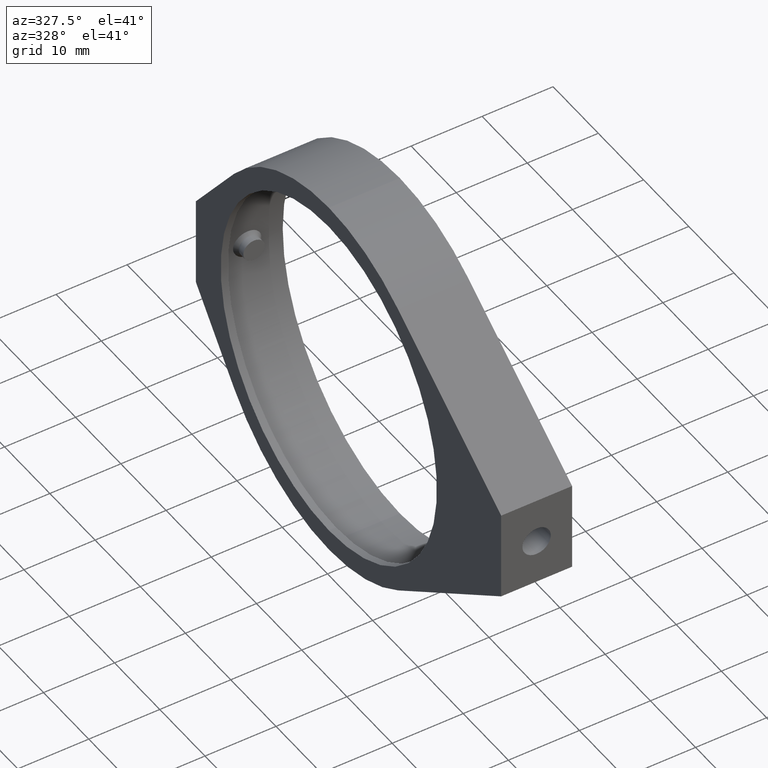
[diagram: clean part render]
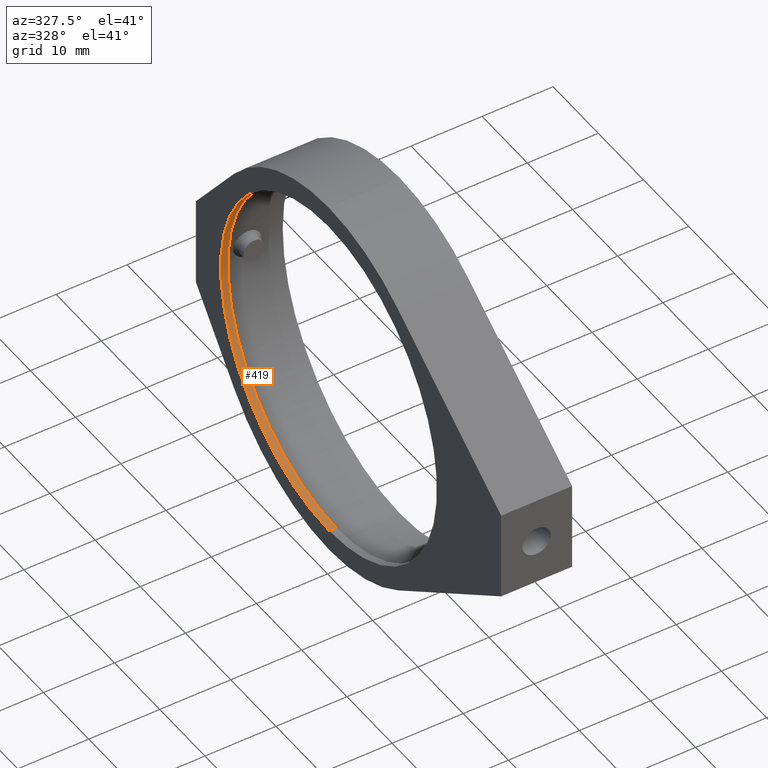
[diagram: same view with one face highlighted and labeled with its STEP entity id]
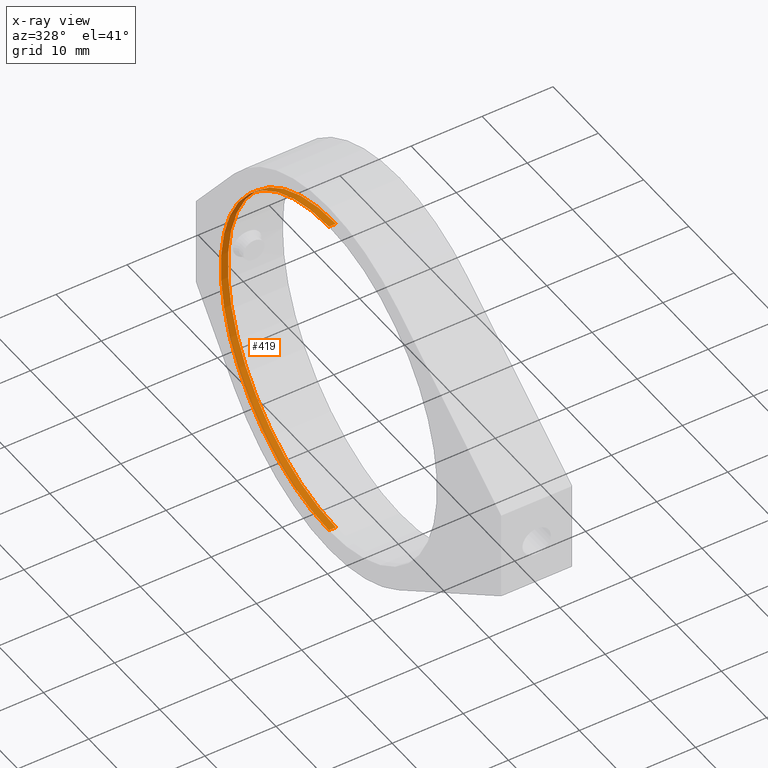
[diagram: x-ray of the same camera — body ghosted, the highlighted face saturated]
A machine part, auxiliary view. The second image highlights one B-rep face of the part: STEP entity #419.
The next image is the same camera in x-ray: the body ghosted, the highlighted face saturated — about 0% of this face is hidden behind the body in this view.
In plain terms, the highlighted cylindrical surface (partial cylindrical patch) has radius 23.9 mm, axis along (1, -0, -0).
Its self-contained STEP definition (entity closure, byte-faithful):
#39 = CARTESIAN_POINT ( 'NONE',  ( -18.30337078651686156, 2.372471910112824212, 43.59999999999998721 ) ) ;
#52 = EDGE_CURVE ( 'NONE', #1049, #349, #861, .T. ) ;
#65 = LINE ( 'NONE', #760, #1290 ) ;
#75 = CIRCLE ( 'NONE', #936, 23.90000000000000568 ) ;
#80 = EDGE_CURVE ( 'NONE', #121, #349, #432, .T. ) ;
#121 = VERTEX_POINT ( 'NONE', #940 ) ;
#145 = CARTESIAN_POINT ( 'NONE',  ( -17.30337078651686156, 2.372471910112824212, 67.49999999999998579 ) ) ;
#182 = DIRECTION ( 'NONE',  ( 1.000000000000000000, -0.0000000000000000000, -0.0000000000000000000 ) ) ;
#185 = CARTESIAN_POINT ( 'NONE',  ( -18.30337078651686156, 2.372471910112827320, 91.39999999999999147 ) ) ;
#308 = CYLINDRICAL_SURFACE ( 'NONE', #1058, 23.90000000000000568 ) ;
#314 = DIRECTION ( 'NONE',  ( 1.000000000000000000, -0.0000000000000000000, -0.0000000000000000000 ) ) ;
#321 = VERTEX_POINT ( 'NONE', #39 ) ;
#349 = VERTEX_POINT ( 'NONE', #660 ) ;
#399 = CARTESIAN_POINT ( 'NONE',  ( -18.30337078651686156, 2.372471910112824212, 67.49999999999998579 ) ) ;
#419 = ADVANCED_FACE ( 'NONE', ( #653 ), #308, .F. ) ;
#432 = LINE ( 'NONE', #185, #758 ) ;
#498 = CARTESIAN_POINT ( 'NONE',  ( -17.30337078651686156, 2.372471910112824212, 43.59999999999998721 ) ) ;
#565 = ORIENTED_EDGE ( 'NONE', *, *, #52, .T. ) ;
#583 = ORIENTED_EDGE ( 'NONE', *, *, #816, .F. ) ;
#613 = DIRECTION ( 'NONE',  ( 1.000000000000000000, 0.0000000000000000000, 0.0000000000000000000 ) ) ;
#653 = FACE_OUTER_BOUND ( 'NONE', #959, .T. ) ;
#658 = DIRECTION ( 'NONE',  ( 1.000000000000000000, 0.0000000000000000000, 0.0000000000000000000 ) ) ;
#660 = CARTESIAN_POINT ( 'NONE',  ( -17.30337078651686156, 2.372471910112827320, 91.39999999999999147 ) ) ;
#725 = DIRECTION ( 'NONE',  ( 0.0000000000000000000, 0.0000000000000000000, -1.000000000000000000 ) ) ;
#758 = VECTOR ( 'NONE', #314, 1000.000000000000000 ) ;
#760 = CARTESIAN_POINT ( 'NONE',  ( -18.30337078651686156, 2.372471910112824212, 43.59999999999998721 ) ) ;
#770 = CARTESIAN_POINT ( 'NONE',  ( -18.30337078651686156, 2.372471910112824212, 67.49999999999998579 ) ) ;
#816 = EDGE_CURVE ( 'NONE', #321, #121, #75, .T. ) ;
#861 = CIRCLE ( 'NONE', #1483, 23.90000000000000568 ) ;
#936 = AXIS2_PLACEMENT_3D ( 'NONE', #770, #658, #725 ) ;
#940 = CARTESIAN_POINT ( 'NONE',  ( -18.30337078651686156, 2.372471910112827320, 91.39999999999999147 ) ) ;
#959 = EDGE_LOOP ( 'NONE', ( #1051, #583, #1271, #565 ) ) ;
#1049 = VERTEX_POINT ( 'NONE', #498 ) ;
#1051 = ORIENTED_EDGE ( 'NONE', *, *, #80, .F. ) ;
#1058 = AXIS2_PLACEMENT_3D ( 'NONE', #399, #182, #1230 ) ;
#1078 = DIRECTION ( 'NONE',  ( 0.0000000000000000000, 0.0000000000000000000, -1.000000000000000000 ) ) ;
#1120 = DIRECTION ( 'NONE',  ( 1.000000000000000000, -0.0000000000000000000, -0.0000000000000000000 ) ) ;
#1174 = EDGE_CURVE ( 'NONE', #321, #1049, #65, .T. ) ;
#1230 = DIRECTION ( 'NONE',  ( 0.0000000000000000000, 0.0000000000000000000, -1.000000000000000000 ) ) ;
#1271 = ORIENTED_EDGE ( 'NONE', *, *, #1174, .T. ) ;
#1290 = VECTOR ( 'NONE', #1120, 1000.000000000000000 ) ;
#1483 = AXIS2_PLACEMENT_3D ( 'NONE', #145, #613, #1078 ) ;